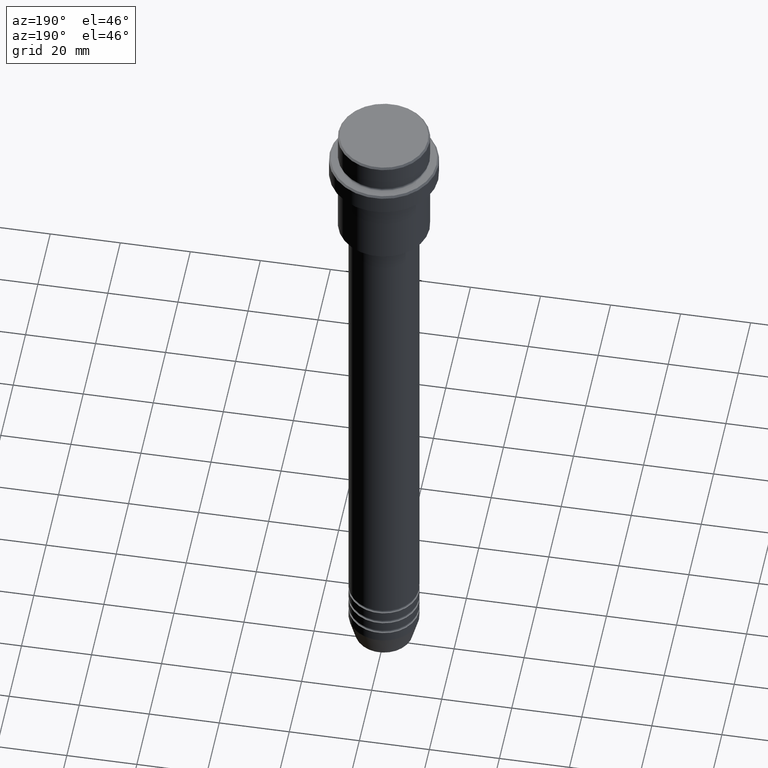
[diagram: clean part render]
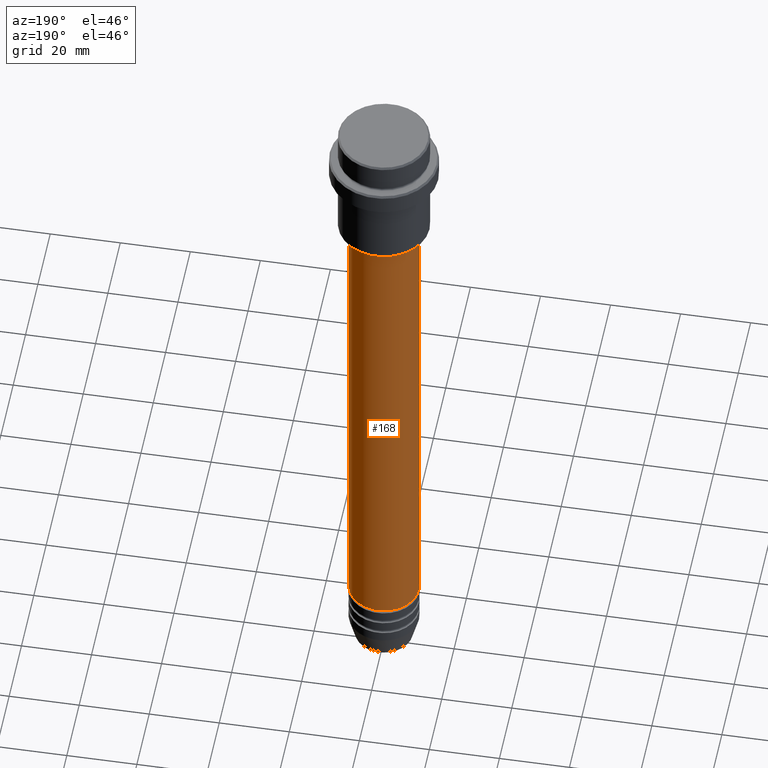
[diagram: same view with one face highlighted and labeled with its STEP entity id]
A machine part, auxiliary view. The second image highlights one B-rep face of the part: STEP entity #168.
In plain terms, the highlighted cylindrical surface (edge-blend (fillet) strip) has radius 10 mm, axis along (-0, -0, 1).
Its self-contained STEP definition (entity closure, byte-faithful):
#2 = VERTEX_POINT ( 'NONE', #297 ) ;
#47 = CARTESIAN_POINT ( 'NONE',  ( 10.00000000000000000, 0.000000000000000000, -181.9999999999998863 ) ) ;
#79 = EDGE_CURVE ( 'NONE', #1232, #2, #221, .T. ) ;
#118 = ORIENTED_EDGE ( 'NONE', *, *, #79, .F. ) ;
#157 = VECTOR ( 'NONE', #1032, 1000.000000000000000 ) ;
#168 = ADVANCED_FACE ( 'NONE', ( #394 ), #397, .T. ) ;
#196 = DIRECTION ( 'NONE',  ( 1.000000000000000000, 0.000000000000000000, 0.000000000000000000 ) ) ;
#197 = CARTESIAN_POINT ( 'NONE',  ( -10.00000000000000000, 1.224646799147353256E-15, -181.9999999999998863 ) ) ;
#221 = LINE ( 'NONE', #458, #484 ) ;
#226 = VERTEX_POINT ( 'NONE', #763 ) ;
#250 = AXIS2_PLACEMENT_3D ( 'NONE', #1077, #749, #196 ) ;
#274 = AXIS2_PLACEMENT_3D ( 'NONE', #854, #950, #514 ) ;
#297 = CARTESIAN_POINT ( 'NONE',  ( 10.00000000000000178, 0.000000000000000000, -37.00000000000000711 ) ) ;
#393 = EDGE_CURVE ( 'NONE', #2, #226, #1034, .T. ) ;
#394 = FACE_OUTER_BOUND ( 'NONE', #798, .T. ) ;
#397 = CYLINDRICAL_SURFACE ( 'NONE', #954, 10.00000000000000178 ) ;
#441 = ORIENTED_EDGE ( 'NONE', *, *, #1172, .T. ) ;
#458 = CARTESIAN_POINT ( 'NONE',  ( 10.00000000000000178, 0.000000000000000000, 0.000000000000000000 ) ) ;
#484 = VECTOR ( 'NONE', #769, 1000.000000000000000 ) ;
#514 = DIRECTION ( 'NONE',  ( 1.000000000000000000, 0.000000000000000000, 0.000000000000000000 ) ) ;
#577 = ORIENTED_EDGE ( 'NONE', *, *, #1355, .T. ) ;
#579 = CARTESIAN_POINT ( 'NONE',  ( -10.00000000000000178, 1.224646799147353454E-15, 0.000000000000000000 ) ) ;
#662 = LINE ( 'NONE', #579, #157 ) ;
#711 = ORIENTED_EDGE ( 'NONE', *, *, #393, .F. ) ;
#749 = DIRECTION ( 'NONE',  ( -0.000000000000000000, -0.000000000000000000, 1.000000000000000000 ) ) ;
#763 = CARTESIAN_POINT ( 'NONE',  ( -10.00000000000000178, 1.224646799147353454E-15, -37.00000000000000711 ) ) ;
#769 = DIRECTION ( 'NONE',  ( -0.000000000000000000, -0.000000000000000000, 1.000000000000000000 ) ) ;
#798 = EDGE_LOOP ( 'NONE', ( #577, #441, #711, #118 ) ) ;
#831 = DIRECTION ( 'NONE',  ( 1.000000000000000000, 0.000000000000000000, 0.000000000000000000 ) ) ;
#854 = CARTESIAN_POINT ( 'NONE',  ( 0.000000000000000000, 0.000000000000000000, -181.9999999999998863 ) ) ;
#950 = DIRECTION ( 'NONE',  ( -0.000000000000000000, -0.000000000000000000, 1.000000000000000000 ) ) ;
#954 = AXIS2_PLACEMENT_3D ( 'NONE', #955, #1412, #831 ) ;
#955 = CARTESIAN_POINT ( 'NONE',  ( 0.000000000000000000, 0.000000000000000000, 0.000000000000000000 ) ) ;
#964 = VERTEX_POINT ( 'NONE', #197 ) ;
#1032 = DIRECTION ( 'NONE',  ( -0.000000000000000000, -0.000000000000000000, 1.000000000000000000 ) ) ;
#1034 = CIRCLE ( 'NONE', #250, 10.00000000000000178 ) ;
#1077 = CARTESIAN_POINT ( 'NONE',  ( 0.000000000000000000, 0.000000000000000000, -37.00000000000000711 ) ) ;
#1172 = EDGE_CURVE ( 'NONE', #964, #226, #662, .T. ) ;
#1232 = VERTEX_POINT ( 'NONE', #47 ) ;
#1256 = CIRCLE ( 'NONE', #274, 10.00000000000000000 ) ;
#1355 = EDGE_CURVE ( 'NONE', #1232, #964, #1256, .T. ) ;
#1412 = DIRECTION ( 'NONE',  ( -0.000000000000000000, -0.000000000000000000, 1.000000000000000000 ) ) ;